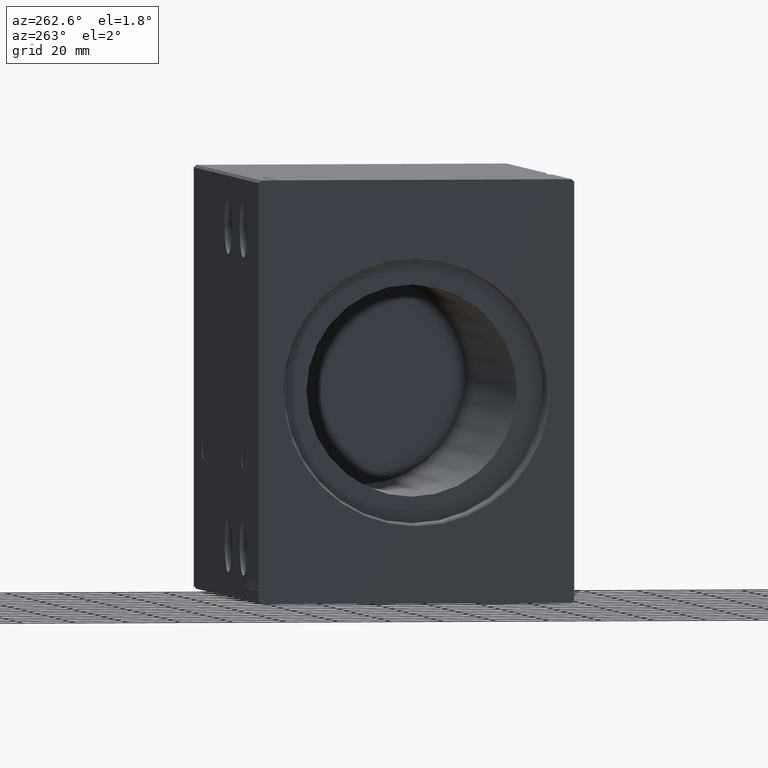
[diagram: clean part render]
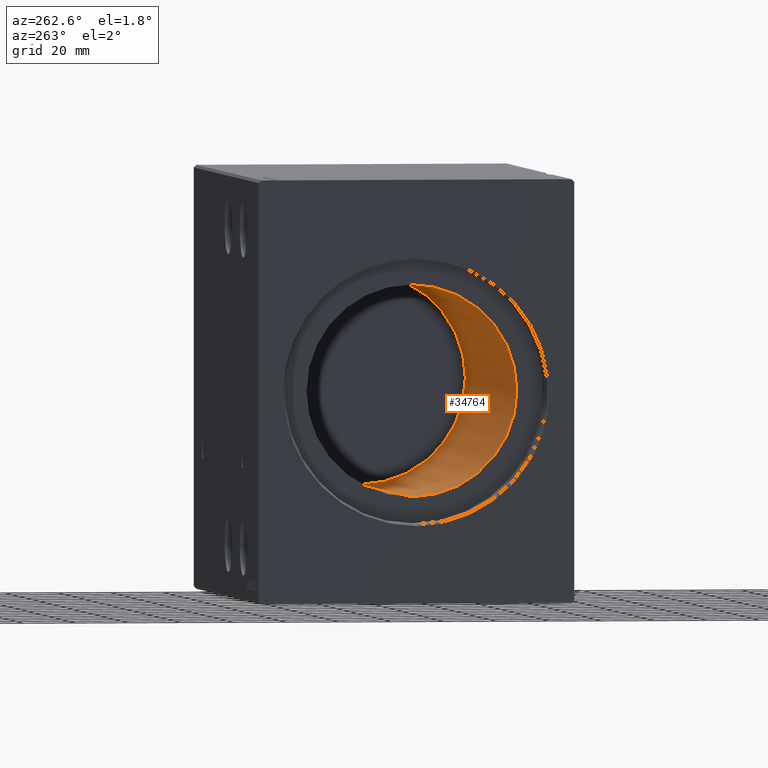
[diagram: same view with one face highlighted and labeled with its STEP entity id]
A machine part, auxiliary view. The second image highlights one B-rep face of the part: STEP entity #34764.
In plain terms, the highlighted cylindrical surface (partial cylindrical patch) has radius 40 mm, axis along (-1, -0, -0).
Its self-contained STEP definition (entity closure, byte-faithful):
#12 = CARTESIAN_POINT ( 'NONE',  ( 164.6999999999999886, 0.000000000000000000, 0.000000000000000000 ) ) ;
#123 = EDGE_CURVE ( 'NONE', #14791, #39137, #20886, .T. ) ;
#2292 = CARTESIAN_POINT ( 'NONE',  ( 164.6999999999999886, 0.000000000000000000, 40.00000000000000000 ) ) ;
#2501 = LINE ( 'NONE', #2292, #26263 ) ;
#2528 = DIRECTION ( 'NONE',  ( -1.000000000000000000, 0.000000000000000000, 0.000000000000000000 ) ) ;
#3211 = CARTESIAN_POINT ( 'NONE',  ( 164.6999999999999886, 0.000000000000000000, 40.00000000000000000 ) ) ;
#3722 = ORIENTED_EDGE ( 'NONE', *, *, #31392, .F. ) ;
#6170 = DIRECTION ( 'NONE',  ( 0.000000000000000000, 0.000000000000000000, 1.000000000000000000 ) ) ;
#7658 = CIRCLE ( 'NONE', #32117, 40.00000000000000000 ) ;
#9032 = DIRECTION ( 'NONE',  ( 0.000000000000000000, 0.000000000000000000, 1.000000000000000000 ) ) ;
#11076 = ORIENTED_EDGE ( 'NONE', *, *, #24325, .T. ) ;
#11179 = CARTESIAN_POINT ( 'NONE',  ( 14.00000000000001243, 0.000000000000000000, 40.00000000000000000 ) ) ;
#11256 = CARTESIAN_POINT ( 'NONE',  ( 164.6999999999999886, 4.898587196589412237E-15, -40.00000000000000000 ) ) ;
#11284 = EDGE_CURVE ( 'NONE', #25152, #33650, #2501, .T. ) ;
#11953 = AXIS2_PLACEMENT_3D ( 'NONE', #12, #32313, #6170 ) ;
#12227 = DIRECTION ( 'NONE',  ( -1.000000000000000000, -0.000000000000000000, -0.000000000000000000 ) ) ;
#14791 = VERTEX_POINT ( 'NONE', #11256 ) ;
#18174 = ORIENTED_EDGE ( 'NONE', *, *, #11284, .F. ) ;
#18657 = DIRECTION ( 'NONE',  ( -1.000000000000000000, -0.000000000000000000, -0.000000000000000000 ) ) ;
#20886 = LINE ( 'NONE', #36834, #23104 ) ;
#21447 = DIRECTION ( 'NONE',  ( 0.000000000000000000, 0.000000000000000000, 1.000000000000000000 ) ) ;
#23104 = VECTOR ( 'NONE', #31080, 1000.000000000000000 ) ;
#24325 = EDGE_CURVE ( 'NONE', #39137, #33650, #7658, .T. ) ;
#25152 = VERTEX_POINT ( 'NONE', #3211 ) ;
#25172 = FACE_OUTER_BOUND ( 'NONE', #38427, .T. ) ;
#26221 = AXIS2_PLACEMENT_3D ( 'NONE', #41346, #12227, #9032 ) ;
#26263 = VECTOR ( 'NONE', #18657, 1000.000000000000000 ) ;
#28366 = CYLINDRICAL_SURFACE ( 'NONE', #26221, 40.00000000000000000 ) ;
#29443 = CARTESIAN_POINT ( 'NONE',  ( 14.00000000000001243, 4.898587196589412237E-15, -40.00000000000000000 ) ) ;
#31080 = DIRECTION ( 'NONE',  ( -1.000000000000000000, -0.000000000000000000, -0.000000000000000000 ) ) ;
#31392 = EDGE_CURVE ( 'NONE', #14791, #25152, #35702, .T. ) ;
#32117 = AXIS2_PLACEMENT_3D ( 'NONE', #34217, #2528, #21447 ) ;
#32313 = DIRECTION ( 'NONE',  ( -1.000000000000000000, 0.000000000000000000, 0.000000000000000000 ) ) ;
#33650 = VERTEX_POINT ( 'NONE', #11179 ) ;
#34217 = CARTESIAN_POINT ( 'NONE',  ( 14.00000000000001243, 0.000000000000000000, 0.000000000000000000 ) ) ;
#34764 = ADVANCED_FACE ( 'NONE', ( #25172 ), #28366, .F. ) ;
#35702 = CIRCLE ( 'NONE', #11953, 40.00000000000000000 ) ;
#35790 = ORIENTED_EDGE ( 'NONE', *, *, #123, .T. ) ;
#36834 = CARTESIAN_POINT ( 'NONE',  ( 164.6999999999999886, 4.898587196589412237E-15, -40.00000000000000000 ) ) ;
#38427 = EDGE_LOOP ( 'NONE', ( #3722, #35790, #11076, #18174 ) ) ;
#39137 = VERTEX_POINT ( 'NONE', #29443 ) ;
#41346 = CARTESIAN_POINT ( 'NONE',  ( 164.6999999999999886, 0.000000000000000000, 0.000000000000000000 ) ) ;